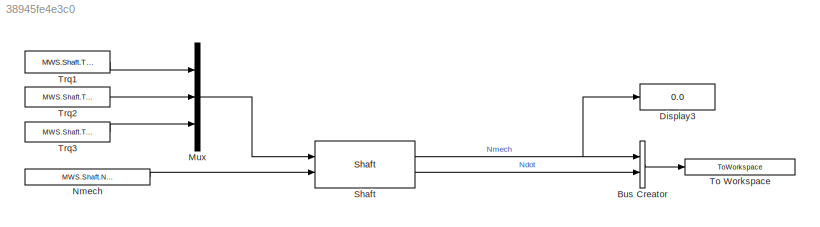
MODEL slx_38945fe4e3c0
KIND model
CONFIG AbsTol = auto
CONFIG EnableMultiTasking = on
CONFIG FixedStep = 1
CONFIG MaxStep = auto
CONFIG MinStep = auto
CONFIG RelTol = 1e-3
CONFIG SampleTimeConstraint = Unconstrained
CONFIG Solver = FixedStepDiscrete
CONFIG SolverName = FixedStepDiscrete
CONFIG StartTime = 0.0
CONFIG StopTime = 1
BLOCK [BusCreator] Bus Creator
  DisplayOption = bar
  InheritFromInputs = on
  Inputs = 2
  Ports = [2, 1]
BLOCK [Display] Display3
  Decimation = 1
  Format = long
  Ports = [1]
BLOCK [Mux] Mux
  DisplayOption = bar
  Inputs = 3
  Ports = [3, 1]
BLOCK [Constant] Nmech
  Value = MWS.Shaft.Nmech
BLOCK [Reference] Shaft  REF=Lib_Turbo_Shaft_TMATS/Shaft
  Ports = [2, 2]
  SourceBlock = Lib_Turbo_Shaft_TMATS/Shaft
  SourceType = T-MATS: Shaft Library Block
BLOCK [ToWorkspace] To Workspace
  MaxDataPoints = inf
  Ports = [1]
  SampleTime = -1
  VariableName = TB_Output
BLOCK [Constant] Trq1
  Value = MWS.Shaft.Trq1
BLOCK [Constant] Trq2
  Value = MWS.Shaft.Trq2
BLOCK [Constant] Trq3
  Value = MWS.Shaft.Trq3
LINE Bus Creator:1 -> To Workspace:1
LINE Mux:1 -> Shaft:1
LINE Nmech:1 -> Shaft:2
NET Shaft:1 -> Bus Creator:1, Display3:1
LINE Shaft:2 -> Bus Creator:2
LINE Trq1:1 -> Mux:1
LINE Trq2:1 -> Mux:2
LINE Trq3:1 -> Mux:3
note: NET lines group one-source signal fan-out (src -> all destinations, sorted); 1:1 wires keep LINE
